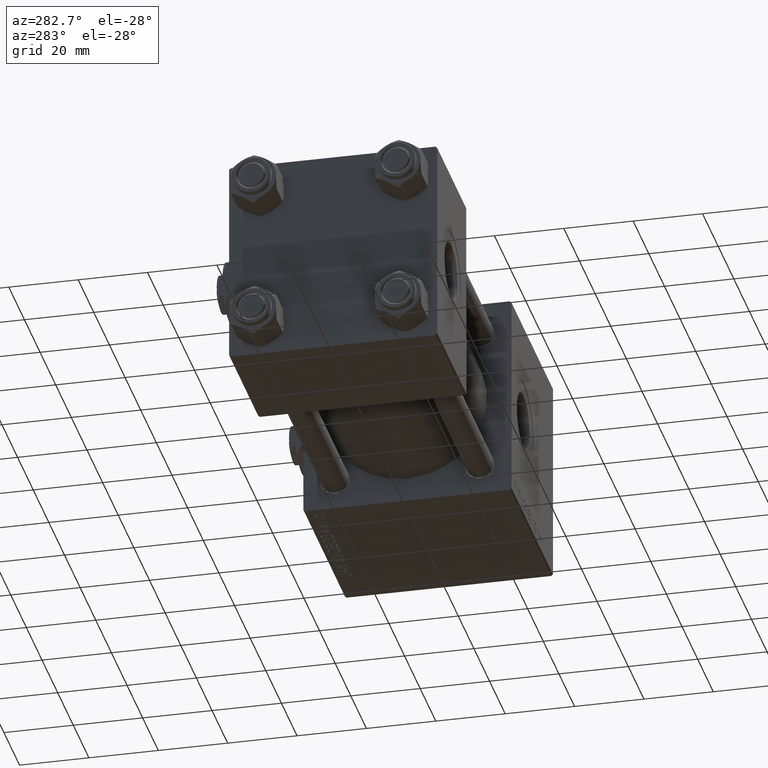
[diagram: clean part render]
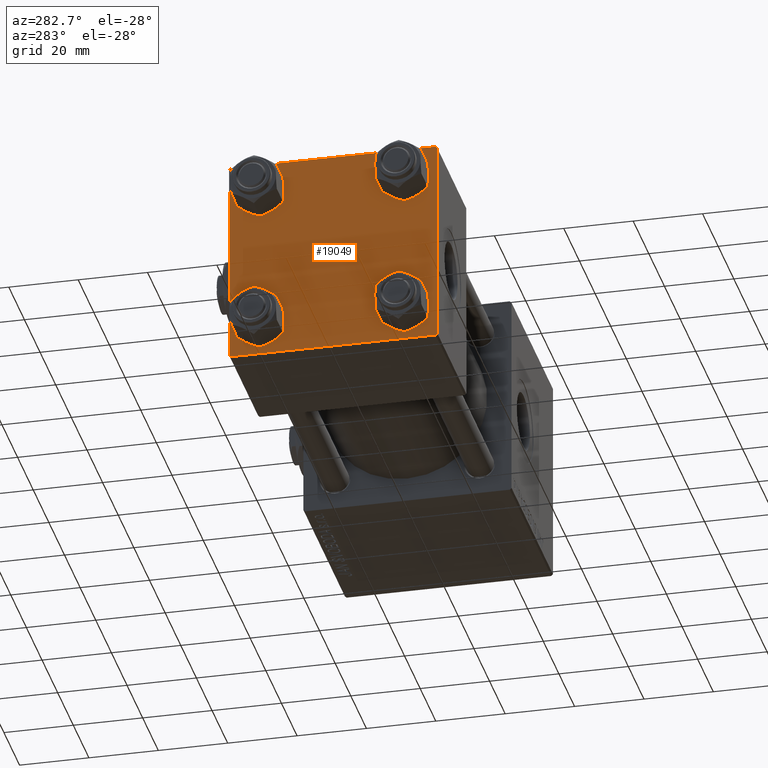
[diagram: same view with one face highlighted and labeled with its STEP entity id]
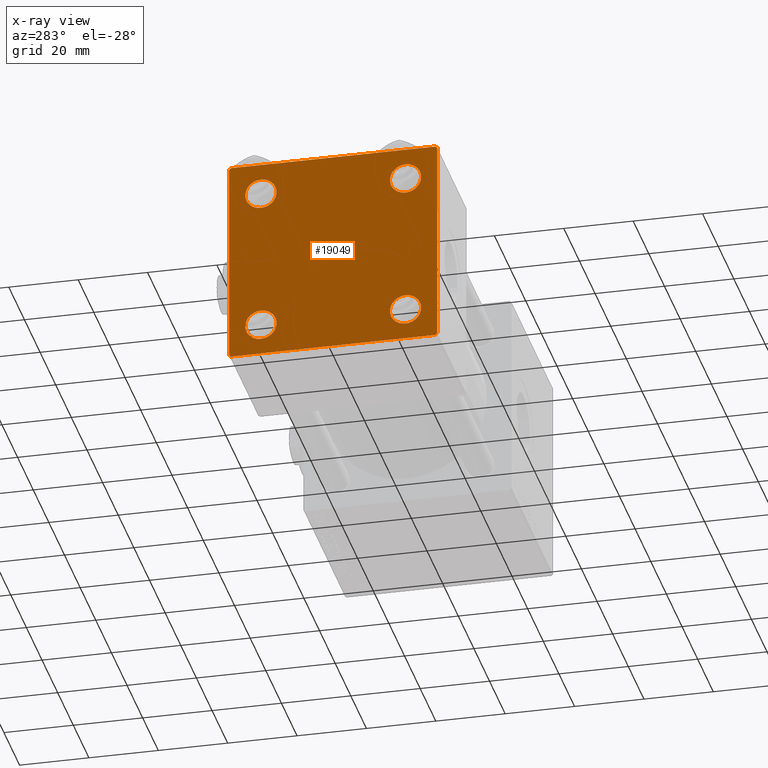
[diagram: x-ray of the same camera — body ghosted, the highlighted face saturated]
A machine part, auxiliary view. The second image highlights one B-rep face of the part: STEP entity #19049.
The next image is the same camera in x-ray: the body ghosted, the highlighted face saturated — about 0% of this face is hidden behind the body in this view.
In plain terms, the highlighted planar face has unit normal (-1, 0, 0).
Its self-contained STEP definition (entity closure, byte-faithful):
#688 = FACE_OUTER_BOUND ( 'NONE', #5903, .T. ) ;
#836 = VERTEX_POINT ( 'NONE', #44261 ) ;
#1566 = CARTESIAN_POINT ( 'NONE',  ( 0.000000000000000000, -30.00000000000000000, 29.49999999999999289 ) ) ;
#3325 = VERTEX_POINT ( 'NONE', #40818 ) ;
#3786 = CARTESIAN_POINT ( 'NONE',  ( 0.000000000000000000, -30.00000000000000000, 29.99999999999999289 ) ) ;
#4104 = ORIENTED_EDGE ( 'NONE', *, *, #23477, .T. ) ;
#4211 = LINE ( 'NONE', #8704, #43384 ) ;
#4281 = VERTEX_POINT ( 'NONE', #42663 ) ;
#4547 = CARTESIAN_POINT ( 'NONE',  ( 0.000000000000000000, 20.84999999999999787, -16.34999999999998366 ) ) ;
#4854 = VERTEX_POINT ( 'NONE', #49830 ) ;
#5183 = ORIENTED_EDGE ( 'NONE', *, *, #31685, .T. ) ;
#5495 = CIRCLE ( 'NONE', #50237, 4.500000000000017764 ) ;
#5839 = VERTEX_POINT ( 'NONE', #4547 ) ;
#5903 = EDGE_LOOP ( 'NONE', ( #15100, #22140, #46155, #38728, #25822, #51694, #9981, #5183 ) ) ;
#6072 = CIRCLE ( 'NONE', #12816, 4.500000000000017764 ) ;
#6403 = DIRECTION ( 'NONE',  ( 0.000000000000000000, -0.7071067811865474617, 0.7071067811865474617 ) ) ;
#6408 = VERTEX_POINT ( 'NONE', #1566 ) ;
#6659 = DIRECTION ( 'NONE',  ( 0.000000000000000000, -1.000000000000000000, -1.156482317317871725E-16 ) ) ;
#6960 = CARTESIAN_POINT ( 'NONE',  ( 0.000000000000000000, -20.84999999999999076, -20.85000000000000497 ) ) ;
#6977 = DIRECTION ( 'NONE',  ( 0.000000000000000000, 0.000000000000000000, 1.000000000000000000 ) ) ;
#7366 = AXIS2_PLACEMENT_3D ( 'NONE', #35252, #43181, #6977 ) ;
#7367 = EDGE_CURVE ( 'NONE', #49694, #3325, #33477, .T. ) ;
#7612 = DIRECTION ( 'NONE',  ( 1.000000000000000000, -0.000000000000000000, 0.000000000000000000 ) ) ;
#7818 = VERTEX_POINT ( 'NONE', #44337 ) ;
#8015 = VERTEX_POINT ( 'NONE', #25838 ) ;
#8023 = VERTEX_POINT ( 'NONE', #26101 ) ;
#8377 = DIRECTION ( 'NONE',  ( -1.000000000000000000, 0.000000000000000000, -0.000000000000000000 ) ) ;
#8388 = EDGE_CURVE ( 'NONE', #5839, #7818, #48706, .T. ) ;
#8704 = CARTESIAN_POINT ( 'NONE',  ( 0.000000000000000000, 29.74999999999999645, 29.74999999999999645 ) ) ;
#9001 = AXIS2_PLACEMENT_3D ( 'NONE', #12165, #43615, #39653 ) ;
#9036 = CIRCLE ( 'NONE', #44473, 4.500000000000017764 ) ;
#9076 = VECTOR ( 'NONE', #25425, 1000.000000000000000 ) ;
#9302 = CARTESIAN_POINT ( 'NONE',  ( 0.000000000000000000, 29.99999999999999289, 30.00000000000000000 ) ) ;
#9981 = ORIENTED_EDGE ( 'NONE', *, *, #39461, .F. ) ;
#10431 = CARTESIAN_POINT ( 'NONE',  ( 0.000000000000000000, 29.49999999999999289, 30.00000000000000000 ) ) ;
#11342 = EDGE_CURVE ( 'NONE', #36427, #12375, #9036, .T. ) ;
#11737 = ORIENTED_EDGE ( 'NONE', *, *, #22778, .T. ) ;
#11894 = CARTESIAN_POINT ( 'NONE',  ( 0.000000000000000000, 29.99999999999999289, 30.00000000000000000 ) ) ;
#12165 = CARTESIAN_POINT ( 'NONE',  ( 0.000000000000000000, -20.84999999999999076, 20.85000000000000497 ) ) ;
#12337 = PLANE ( 'NONE',  #35475 ) ;
#12375 = VERTEX_POINT ( 'NONE', #50764 ) ;
#12494 = CARTESIAN_POINT ( 'NONE',  ( 0.000000000000000000, 29.99999999999999289, -30.00000000000000000 ) ) ;
#12816 = AXIS2_PLACEMENT_3D ( 'NONE', #6960, #51104, #31783 ) ;
#13006 = EDGE_CURVE ( 'NONE', #3325, #49694, #40280, .T. ) ;
#14191 = CARTESIAN_POINT ( 'NONE',  ( -0.000000000000000000, -29.74999999999999645, 29.74999999999999645 ) ) ;
#15100 = ORIENTED_EDGE ( 'NONE', *, *, #32398, .T. ) ;
#15274 = EDGE_CURVE ( 'NONE', #6408, #836, #19657, .T. ) ;
#15287 = CARTESIAN_POINT ( 'NONE',  ( 0.000000000000000000, -20.84999999999999076, 16.34999999999998721 ) ) ;
#15372 = DIRECTION ( 'NONE',  ( -0.000000000000000000, -0.7071067811865574537, -0.7071067811865376918 ) ) ;
#15637 = ORIENTED_EDGE ( 'NONE', *, *, #13006, .T. ) ;
#15957 = DIRECTION ( 'NONE',  ( 0.000000000000000000, 0.000000000000000000, -1.000000000000000000 ) ) ;
#16454 = LINE ( 'NONE', #12494, #22080 ) ;
#16831 = DIRECTION ( 'NONE',  ( -0.000000000000000000, 0.000000000000000000, 1.000000000000000000 ) ) ;
#16844 = EDGE_CURVE ( 'NONE', #31222, #8023, #43633, .T. ) ;
#16915 = EDGE_CURVE ( 'NONE', #4854, #4281, #25312, .T. ) ;
#17519 = AXIS2_PLACEMENT_3D ( 'NONE', #27616, #20201, #40274 ) ;
#18397 = DIRECTION ( 'NONE',  ( 1.000000000000000000, -0.000000000000000000, 0.000000000000000000 ) ) ;
#19049 = ADVANCED_FACE ( 'NONE', ( #41643, #20797, #33203, #36904, #688 ), #12337, .T. ) ;
#19616 = CARTESIAN_POINT ( 'NONE',  ( 0.000000000000000000, 29.99999999999999289, -29.50000000000000000 ) ) ;
#19657 = LINE ( 'NONE', #3786, #45647 ) ;
#19773 = VECTOR ( 'NONE', #30314, 1000.000000000000114 ) ;
#19838 = EDGE_LOOP ( 'NONE', ( #47526, #4104 ) ) ;
#19871 = CARTESIAN_POINT ( 'NONE',  ( 0.000000000000000000, 29.99999999999999289, 29.50000000000000000 ) ) ;
#20201 = DIRECTION ( 'NONE',  ( 1.000000000000000000, -0.000000000000000000, 0.000000000000000000 ) ) ;
#20742 = CARTESIAN_POINT ( 'NONE',  ( 0.000000000000000000, 20.84999999999999787, 20.85000000000000142 ) ) ;
#20797 = FACE_BOUND ( 'NONE', #32245, .T. ) ;
#21160 = EDGE_CURVE ( 'NONE', #8023, #8015, #16454, .T. ) ;
#21433 = DIRECTION ( 'NONE',  ( 1.000000000000000000, -0.000000000000000000, 0.000000000000000000 ) ) ;
#21769 = VERTEX_POINT ( 'NONE', #10431 ) ;
#22080 = VECTOR ( 'NONE', #6659, 1000.000000000000000 ) ;
#22140 = ORIENTED_EDGE ( 'NONE', *, *, #16844, .T. ) ;
#22778 = EDGE_CURVE ( 'NONE', #4281, #4854, #6072, .T. ) ;
#23477 = EDGE_CURVE ( 'NONE', #7818, #5839, #26375, .T. ) ;
#23717 = AXIS2_PLACEMENT_3D ( 'NONE', #44684, #21433, #33586 ) ;
#23999 = VECTOR ( 'NONE', #44915, 1000.000000000000000 ) ;
#24386 = EDGE_LOOP ( 'NONE', ( #15637, #34485 ) ) ;
#24819 = DIRECTION ( 'NONE',  ( 0.000000000000000000, 0.7071067811865474617, -0.7071067811865474617 ) ) ;
#25312 = CIRCLE ( 'NONE', #23717, 4.500000000000017764 ) ;
#25425 = DIRECTION ( 'NONE',  ( 0.000000000000000000, -1.000000000000000000, -1.156482317317871725E-16 ) ) ;
#25822 = ORIENTED_EDGE ( 'NONE', *, *, #15274, .F. ) ;
#25838 = CARTESIAN_POINT ( 'NONE',  ( 0.000000000000000000, -29.50000000000000000, -30.00000000000000711 ) ) ;
#26101 = CARTESIAN_POINT ( 'NONE',  ( 0.000000000000000000, 29.49999999999997868, -30.00000000000000000 ) ) ;
#26375 = CIRCLE ( 'NONE', #44911, 4.500000000000017764 ) ;
#27616 = CARTESIAN_POINT ( 'NONE',  ( 0.000000000000000000, -20.84999999999999076, 20.85000000000000497 ) ) ;
#28172 = ORIENTED_EDGE ( 'NONE', *, *, #16915, .T. ) ;
#28466 = CARTESIAN_POINT ( 'NONE',  ( 0.000000000000000000, 0.000000000000000000, 0.000000000000000000 ) ) ;
#28941 = DIRECTION ( 'NONE',  ( 1.000000000000000000, -0.000000000000000000, 0.000000000000000000 ) ) ;
#29503 = ORIENTED_EDGE ( 'NONE', *, *, #11342, .T. ) ;
#29638 = EDGE_CURVE ( 'NONE', #12375, #36427, #5495, .T. ) ;
#30314 = DIRECTION ( 'NONE',  ( -0.000000000000000000, 0.7071067811865474617, 0.7071067811865474617 ) ) ;
#31217 = VERTEX_POINT ( 'NONE', #19871 ) ;
#31222 = VERTEX_POINT ( 'NONE', #19616 ) ;
#31685 = EDGE_CURVE ( 'NONE', #21769, #31217, #4211, .T. ) ;
#31783 = DIRECTION ( 'NONE',  ( 0.000000000000000000, 0.000000000000000000, 1.000000000000000000 ) ) ;
#32129 = EDGE_CURVE ( 'NONE', #6408, #40097, #50392, .T. ) ;
#32245 = EDGE_LOOP ( 'NONE', ( #11737, #28172 ) ) ;
#32398 = EDGE_CURVE ( 'NONE', #31217, #31222, #36197, .T. ) ;
#32997 = VECTOR ( 'NONE', #15372, 999.9999999999998863 ) ;
#33155 = DIRECTION ( 'NONE',  ( 0.000000000000000000, 0.000000000000000000, 1.000000000000000000 ) ) ;
#33203 = FACE_BOUND ( 'NONE', #19838, .T. ) ;
#33477 = CIRCLE ( 'NONE', #9001, 4.500000000000017764 ) ;
#33586 = DIRECTION ( 'NONE',  ( 0.000000000000000000, 0.000000000000000000, 1.000000000000000000 ) ) ;
#34485 = ORIENTED_EDGE ( 'NONE', *, *, #7367, .T. ) ;
#34691 = EDGE_LOOP ( 'NONE', ( #29503, #47213 ) ) ;
#35252 = CARTESIAN_POINT ( 'NONE',  ( 0.000000000000000000, 20.84999999999999787, -20.85000000000000142 ) ) ;
#35475 = AXIS2_PLACEMENT_3D ( 'NONE', #28466, #8377, #16831 ) ;
#36197 = LINE ( 'NONE', #11894, #23999 ) ;
#36427 = VERTEX_POINT ( 'NONE', #38772 ) ;
#36904 = FACE_BOUND ( 'NONE', #34691, .T. ) ;
#37864 = LINE ( 'NONE', #46837, #42059 ) ;
#38090 = LINE ( 'NONE', #9302, #9076 ) ;
#38728 = ORIENTED_EDGE ( 'NONE', *, *, #50264, .T. ) ;
#38772 = CARTESIAN_POINT ( 'NONE',  ( 0.000000000000000000, 20.84999999999999787, 25.35000000000001918 ) ) ;
#39461 = EDGE_CURVE ( 'NONE', #21769, #40097, #38090, .T. ) ;
#39653 = DIRECTION ( 'NONE',  ( 0.000000000000000000, 0.000000000000000000, 1.000000000000000000 ) ) ;
#40097 = VERTEX_POINT ( 'NONE', #44579 ) ;
#40274 = DIRECTION ( 'NONE',  ( 0.000000000000000000, 0.000000000000000000, 1.000000000000000000 ) ) ;
#40280 = CIRCLE ( 'NONE', #17519, 4.500000000000017764 ) ;
#40818 = CARTESIAN_POINT ( 'NONE',  ( 0.000000000000000000, -20.84999999999999076, 25.35000000000002274 ) ) ;
#41643 = FACE_BOUND ( 'NONE', #24386, .T. ) ;
#42059 = VECTOR ( 'NONE', #6403, 1000.000000000000114 ) ;
#42663 = CARTESIAN_POINT ( 'NONE',  ( 0.000000000000000000, -20.84999999999999076, -16.34999999999998721 ) ) ;
#43181 = DIRECTION ( 'NONE',  ( 1.000000000000000000, -0.000000000000000000, 0.000000000000000000 ) ) ;
#43370 = CARTESIAN_POINT ( 'NONE',  ( 0.000000000000000000, 29.74999999999957723, -29.75000000000040501 ) ) ;
#43384 = VECTOR ( 'NONE', #24819, 1000.000000000000114 ) ;
#43615 = DIRECTION ( 'NONE',  ( 1.000000000000000000, -0.000000000000000000, 0.000000000000000000 ) ) ;
#43633 = LINE ( 'NONE', #43370, #32997 ) ;
#44065 = DIRECTION ( 'NONE',  ( 0.000000000000000000, 0.000000000000000000, 1.000000000000000000 ) ) ;
#44261 = CARTESIAN_POINT ( 'NONE',  ( 0.000000000000000000, -30.00000000000000000, -29.50000000000001776 ) ) ;
#44325 = CARTESIAN_POINT ( 'NONE',  ( 0.000000000000000000, 20.84999999999999787, -20.85000000000000142 ) ) ;
#44337 = CARTESIAN_POINT ( 'NONE',  ( 0.000000000000000000, 20.84999999999999787, -25.35000000000001918 ) ) ;
#44473 = AXIS2_PLACEMENT_3D ( 'NONE', #20742, #28941, #33155 ) ;
#44579 = CARTESIAN_POINT ( 'NONE',  ( 0.000000000000000000, -29.49999999999998579, 29.99999999999999289 ) ) ;
#44684 = CARTESIAN_POINT ( 'NONE',  ( 0.000000000000000000, -20.84999999999999076, -20.85000000000000497 ) ) ;
#44911 = AXIS2_PLACEMENT_3D ( 'NONE', #44325, #7612, #44065 ) ;
#44915 = DIRECTION ( 'NONE',  ( 0.000000000000000000, 0.000000000000000000, -1.000000000000000000 ) ) ;
#45647 = VECTOR ( 'NONE', #15957, 1000.000000000000000 ) ;
#46138 = DIRECTION ( 'NONE',  ( 0.000000000000000000, 0.000000000000000000, 1.000000000000000000 ) ) ;
#46155 = ORIENTED_EDGE ( 'NONE', *, *, #21160, .T. ) ;
#46837 = CARTESIAN_POINT ( 'NONE',  ( 0.000000000000000000, -29.75000000000001066, -29.75000000000001066 ) ) ;
#47213 = ORIENTED_EDGE ( 'NONE', *, *, #29638, .T. ) ;
#47526 = ORIENTED_EDGE ( 'NONE', *, *, #8388, .T. ) ;
#48706 = CIRCLE ( 'NONE', #7366, 4.500000000000017764 ) ;
#49694 = VERTEX_POINT ( 'NONE', #15287 ) ;
#49830 = CARTESIAN_POINT ( 'NONE',  ( 0.000000000000000000, -20.84999999999999076, -25.35000000000002274 ) ) ;
#50237 = AXIS2_PLACEMENT_3D ( 'NONE', #50370, #18397, #46138 ) ;
#50264 = EDGE_CURVE ( 'NONE', #8015, #836, #37864, .T. ) ;
#50370 = CARTESIAN_POINT ( 'NONE',  ( 0.000000000000000000, 20.84999999999999787, 20.85000000000000142 ) ) ;
#50392 = LINE ( 'NONE', #14191, #19773 ) ;
#50764 = CARTESIAN_POINT ( 'NONE',  ( 0.000000000000000000, 20.84999999999999787, 16.34999999999998366 ) ) ;
#51104 = DIRECTION ( 'NONE',  ( 1.000000000000000000, -0.000000000000000000, 0.000000000000000000 ) ) ;
#51694 = ORIENTED_EDGE ( 'NONE', *, *, #32129, .T. ) ;